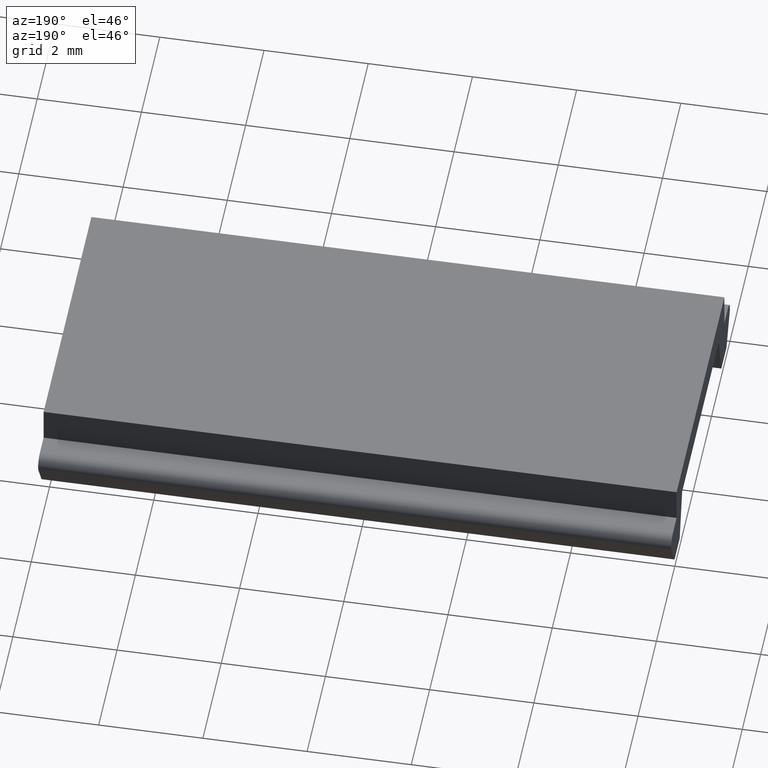
[diagram: clean part render]
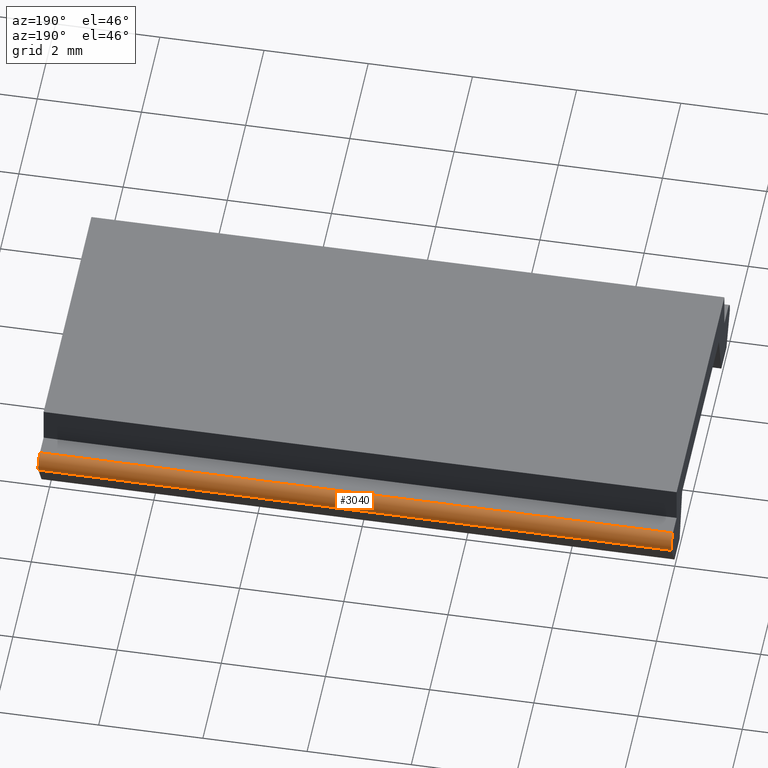
[diagram: same view with one face highlighted and labeled with its STEP entity id]
A machine part, auxiliary view. The second image highlights one B-rep face of the part: STEP entity #3040.
In plain terms, the highlighted cylindrical surface (edge-blend (fillet) strip) has radius 0.1988 mm, axis along (-1, 0, 0).
Its self-contained STEP definition (entity closure, byte-faithful):
#770=CARTESIAN_POINT('',(0.0256128815321159,-2.,0.601490769671017));
#780=VERTEX_POINT('',#770);
#810=CARTESIAN_POINT('',(0.197642395617414,-2.,0.701175470893366));
#820=DIRECTION('',(-3.42113882891801E-49,-1.,0.));
#830=DIRECTION('',(0.98480775301208,-3.36916404284913E-49,
0.173648177667655));
#840=AXIS2_PLACEMENT_3D('',#810,#820,#830);
#850=CIRCLE('',#840,0.198824529108738);
#860=CARTESIAN_POINT('',(0.197642229317264,-2.,0.900000000002034));
#870=VERTEX_POINT('',#860);
#880=EDGE_CURVE('',#870,#780,#850,.T.);
#1650=CARTESIAN_POINT('',(0.197642229317264,10.15,0.900000000002034));
#1660=VERTEX_POINT('',#1650);
#1690=CARTESIAN_POINT('',(0.197642395617414,10.15,0.701175470893366));
#1700=DIRECTION('',(-3.42113882891801E-49,-1.,0.));
#1710=DIRECTION('',(0.98480775301208,-3.36916404284913E-49,
0.173648177667655));
#1720=AXIS2_PLACEMENT_3D('',#1690,#1700,#1710);
#1730=CIRCLE('',#1720,0.198824529108738);
#1740=CARTESIAN_POINT('',(0.0256128815321159,10.15,0.601490769671017));
#1750=VERTEX_POINT('',#1740);
#1760=EDGE_CURVE('',#1660,#1750,#1730,.T.);
#2710=CARTESIAN_POINT('',(0.0256128815321137,-2.64760847769052E-49,
0.601490769671021));
#2720=DIRECTION('',(3.42113882891801E-49,1.,0.));
#2730=VECTOR('',#2720,1.);
#2740=LINE('',#2710,#2730);
#2750=EDGE_CURVE('',#780,#1750,#2740,.T.);
#2880=CARTESIAN_POINT('',(0.197642395617414,-3.23614532804764E-49,
0.701175470893366));
#2890=DIRECTION('',(-3.42113882891801E-49,-1.,0.));
#2900=DIRECTION('',(0.98480775301208,-3.36916404284913E-49,
0.173648177667655));
#2910=AXIS2_PLACEMENT_3D('',#2880,#2890,#2900);
#2920=CYLINDRICAL_SURFACE('',#2910,0.198824529108738);
#2930=ORIENTED_EDGE('',*,*,#880,.F.);
#2940=ORIENTED_EDGE('',*,*,#2750,.F.);
#2950=ORIENTED_EDGE('',*,*,#1760,.T.);
#2960=CARTESIAN_POINT('',(0.197642229317264,-3.23614475911174E-49,
0.900000000002034));
#2970=DIRECTION('',(3.42113882891801E-49,1.,0.));
#2980=VECTOR('',#2970,1.);
#2990=LINE('',#2960,#2980);
#3000=EDGE_CURVE('',#870,#1660,#2990,.T.);
#3010=ORIENTED_EDGE('',*,*,#3000,.T.);
#3020=EDGE_LOOP('',(#3010,#2950,#2940,#2930));
#3030=FACE_OUTER_BOUND('',#3020,.T.);
#3040=ADVANCED_FACE('',(#3030),#2920,.T.);